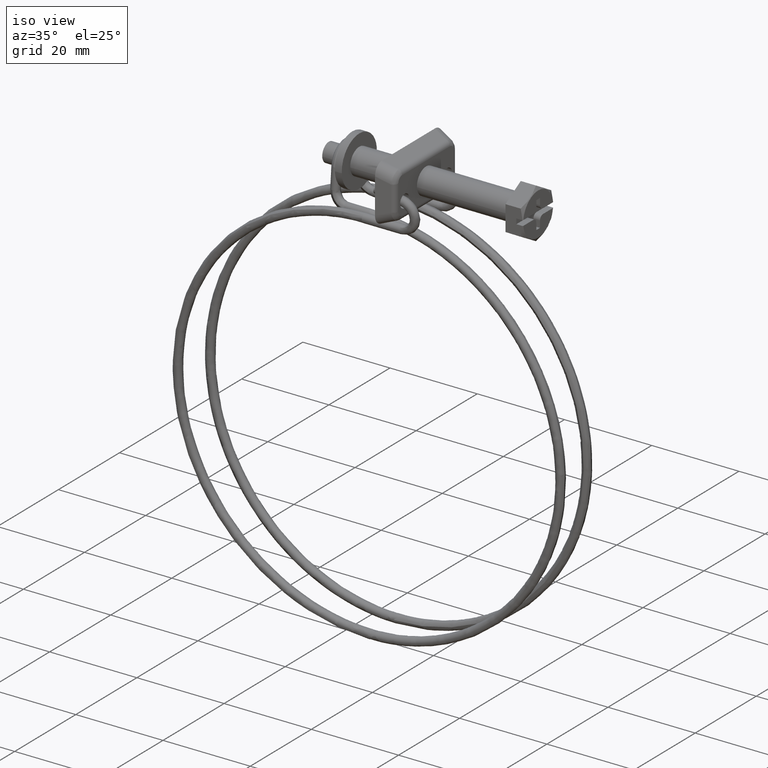
[diagram: clean part render]
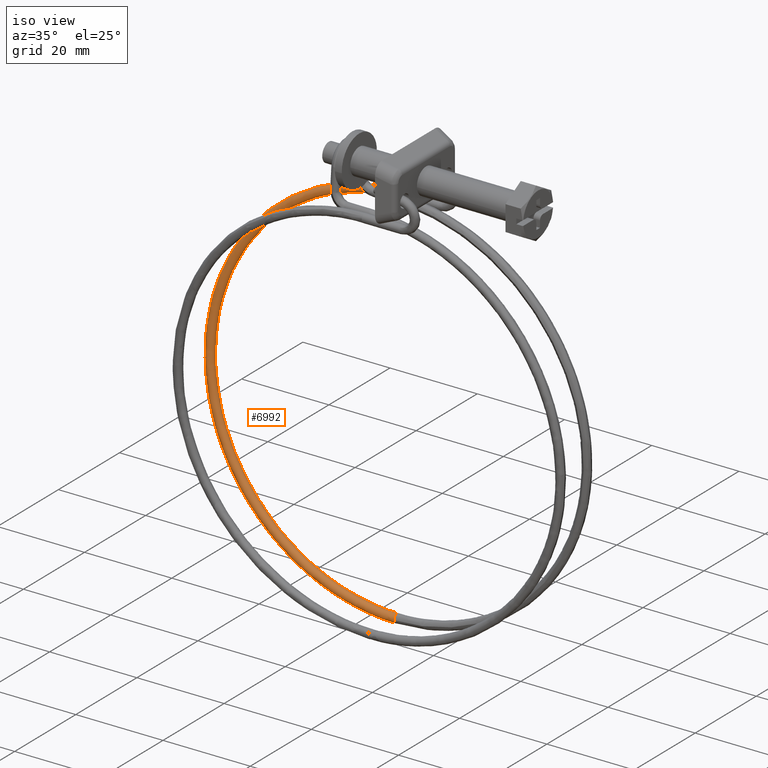
[diagram: same view with one face highlighted and labeled with its STEP entity id]
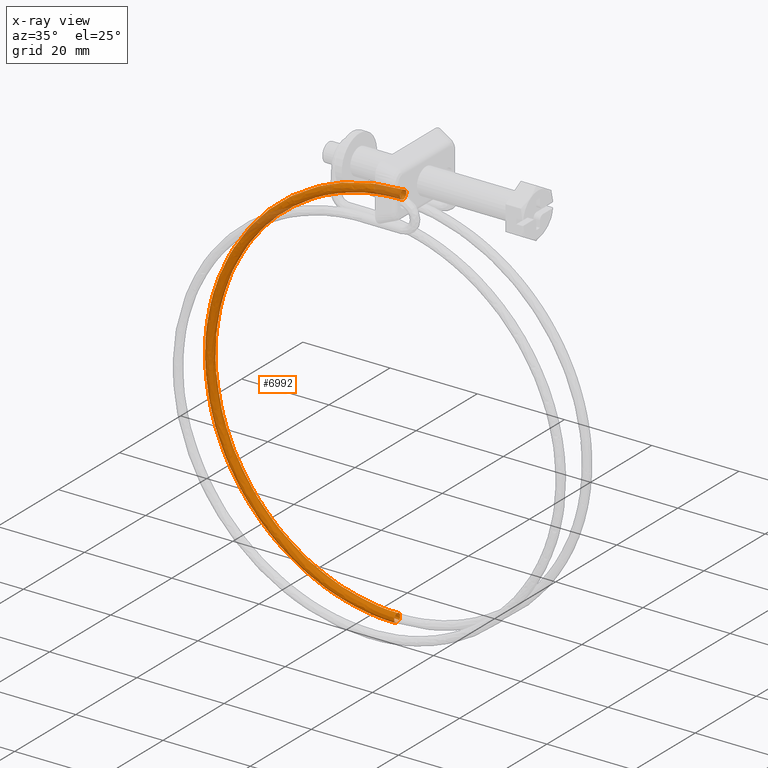
[diagram: x-ray of the same camera — body ghosted, the highlighted face saturated]
A machine part, iso view. The second image highlights one B-rep face of the part: STEP entity #6992.
The next image is the same camera in x-ray: the body ghosted, the highlighted face saturated — about 9% of this face is hidden behind the body in this view.
In plain terms, the highlighted face is a freeform B-spline surface patch.
Its self-contained STEP definition (entity closure, byte-faithful):
#4398=CARTESIAN_POINT('',(-31.349999999999749,6.002141516940950,-6.899077270550654));
#4399=VERTEX_POINT('',#4398);
#4400=CARTESIAN_POINT('',(-31.349999999999859,6.356184150809079,-6.851067969104745));
#4401=VERTEX_POINT('',#4400);
#4402=CARTESIAN_POINT('',(-31.349999999999749,6.002141516940950,-6.899077270550654));
#4403=CARTESIAN_POINT('',(-31.349999999999770,6.116085816228924,-6.862246773684251));
#4404=CARTESIAN_POINT('',(-31.349999999999799,6.236488123506049,-6.845384976278681));
#4405=CARTESIAN_POINT('',(-31.349999999999859,6.356184150809079,-6.851067969104745));
#4406=B_SPLINE_CURVE_WITH_KNOTS('',3,(#4402,#4403,#4404,#4405),.UNSPECIFIED.,.F.,.U.,(4,4),(0.942811831421887,1.0),.UNSPECIFIED.);
#4407=EDGE_CURVE('',#4399,#4401,#4406,.T.);
#4460=CARTESIAN_POINT('',(-31.349999999349759,5.310151656108771,-7.864888212279755));
#4461=VERTEX_POINT('',#4460);
#4467=CARTESIAN_POINT('',(-31.349999999999721,6.263819660097981,-8.848934030895604));
#4468=VERTEX_POINT('',#4467);
#4469=CARTESIAN_POINT('',(-31.349999999999721,6.263819660097981,-8.848934030895604));
#4470=CARTESIAN_POINT('',(-31.349999999909279,6.002294188613754,-8.836843640709359));
#4471=CARTESIAN_POINT('',(-31.349999999784369,5.747354253451134,-8.717169631460127));
#4472=CARTESIAN_POINT('',(-31.349999999545780,5.408316047699136,-8.345279260378682));
#4473=CARTESIAN_POINT('',(-31.349999999433312,5.314316095908798,-8.106126227399644));
#4474=CARTESIAN_POINT('',(-31.349999999349759,5.310151656108771,-7.864888212279755));
#4475=B_SPLINE_CURVE_WITH_KNOTS('',3,(#4469,#4470,#4471,#4472,#4473,#4474),.UNSPECIFIED.,.F.,.U.,(4,2,4),(0.500000000000000,0.625000000000000,0.740274349353487),.UNSPECIFIED.);
#4476=EDGE_CURVE('',#4468,#4461,#4475,.T.);
#4478=CARTESIAN_POINT('',(-31.349999999999859,7.069786342485944,-7.199859997275263));
#4479=VERTEX_POINT('',#4478);
#4480=CARTESIAN_POINT('',(-31.349999999999859,7.069786342485944,-7.199859997275263));
#4481=CARTESIAN_POINT('',(-31.349999999999721,7.232862618115296,-7.390962694234846));
#4482=CARTESIAN_POINT('',(-31.349999999999731,7.320541782176363,-7.645124389463263));
#4483=CARTESIAN_POINT('',(-31.349999999999721,7.296844452787684,-8.157703301296500));
#4484=CARTESIAN_POINT('',(-31.349999999999731,7.177170314575592,-8.412635756900890));
#4485=CARTESIAN_POINT('',(-31.349999999999721,6.790226578803581,-8.765382441016900));
#4486=CARTESIAN_POINT('',(-31.349999999999731,6.525339716038753,-8.861024514456879));
#4487=CARTESIAN_POINT('',(-31.349999999999721,6.263819660097981,-8.848934030895604));
#4488=B_SPLINE_CURVE_WITH_KNOTS('',3,(#4480,#4481,#4482,#4483,#4484,#4485,#4486,#4487),.UNSPECIFIED.,.F.,.U.,(4,2,2,4),(0.130000190143483,0.250000000000000,0.375000000000000,0.500000000000000),.UNSPECIFIED.);
#4489=EDGE_CURVE('',#4479,#4468,#4488,.T.);
#4517=CARTESIAN_POINT('',(-31.349999999349759,5.310151656108771,-7.864888212279755));
#4518=CARTESIAN_POINT('',(-31.349999999358701,5.309799209162009,-7.844528721063062));
#4519=CARTESIAN_POINT('',(-31.349999999367849,5.310086183933885,-7.824154239653593));
#4520=CARTESIAN_POINT('',(-31.349999999497349,5.323095395112666,-7.542194869797533));
#4521=CARTESIAN_POINT('',(-31.349999999648869,5.442743821456357,-7.287155129218784));
#4522=CARTESIAN_POINT('',(-31.349999999865009,5.741136468097140,-7.014947163849530));
#4523=CARTESIAN_POINT('',(-31.349999999937161,5.867099143843566,-6.942973733961462));
#4524=CARTESIAN_POINT('',(-31.349999999999749,6.002141516940950,-6.899077270550654));
#4525=B_SPLINE_CURVE_WITH_KNOTS('',3,(#4517,#4518,#4519,#4520,#4521,#4522,#4523,#4524),.UNSPECIFIED.,.F.,.U.,(4,2,2,4),(0.740274349353487,0.750000000000000,0.875000000000000,0.942811831421887),.UNSPECIFIED.);
#4526=EDGE_CURVE('',#4461,#4399,#4525,.T.);
#6085=CARTESIAN_POINT('',(-31.350000000000001,4.300002000001119,-93.850001000000006));
#6086=VERTEX_POINT('',#6085);
#6087=CARTESIAN_POINT('',(-31.349999999994260,3.300325002941401,-94.875130895281302));
#6088=VERTEX_POINT('',#6087);
#6089=CARTESIAN_POINT('',(-31.350000000000001,4.300002000001119,-93.850001000000006));
#6090=CARTESIAN_POINT('',(-31.349999999999270,4.038201694073048,-93.850001024100706));
#6091=CARTESIAN_POINT('',(-31.349999999998229,3.778013123048063,-93.957774154617212));
#6092=CARTESIAN_POINT('',(-31.349999999996129,3.407770248271958,-94.328014468498822));
#6093=CARTESIAN_POINT('',(-31.349999999995081,3.299995838207714,-94.588201773946707));
#6094=CARTESIAN_POINT('',(-31.349999999994310,3.299994866562023,-94.858380210193246));
#6095=CARTESIAN_POINT('',(-31.349999999994289,3.300105234481097,-94.866757582539620));
#6096=CARTESIAN_POINT('',(-31.349999999994260,3.300325002941401,-94.875130895281302));
#6097=B_SPLINE_CURVE_WITH_KNOTS('',3,(#6089,#6090,#6091,#6092,#6093,#6094,#6095,#6096),.UNSPECIFIED.,.F.,.U.,(4,2,2,4),(0.500000000000000,0.625000000000000,0.750000000000000,0.754000688758449),.UNSPECIFIED.);
#6098=EDGE_CURVE('',#6086,#6088,#6097,.T.);
#6119=CARTESIAN_POINT('',(-31.349999986310571,4.312567047722788,-95.849843094641699));
#6120=VERTEX_POINT('',#6119);
#6136=CARTESIAN_POINT('',(-31.350000000000001,5.028950799209254,-95.534536873649955));
#6137=VERTEX_POINT('',#6136);
#6147=CARTESIAN_POINT('',(-31.350000000000001,5.028950799209254,-95.534536873649955));
#6148=CARTESIAN_POINT('',(-31.350000000000001,5.200678629130110,-95.351169305936637));
#6149=CARTESIAN_POINT('',(-31.350000000000001,5.300002000001119,-95.101328014051759));
#6150=CARTESIAN_POINT('',(-31.350000000000001,5.300002000001119,-94.588201612200905));
#6151=CARTESIAN_POINT('',(-31.350000000000001,5.192228903610930,-94.328014341236695));
#6152=CARTESIAN_POINT('',(-31.350000000000001,4.821988658764400,-93.957774096390196));
#6153=CARTESIAN_POINT('',(-31.350000000000001,4.561801387800270,-93.850001000000006));
#6154=CARTESIAN_POINT('',(-31.350000000000001,4.300002000001119,-93.850001000000006));
#6155=B_SPLINE_CURVE_WITH_KNOTS('',3,(#6147,#6148,#6149,#6150,#6151,#6152,#6153,#6154),.UNSPECIFIED.,.F.,.U.,(4,2,2,4),(0.130000190143430,0.250000000000000,0.375000000000000,0.500000000000000),.UNSPECIFIED.);
#6156=EDGE_CURVE('',#6137,#6086,#6155,.T.);
#6194=CARTESIAN_POINT('',(-31.349999999994260,3.300325002941401,-94.875130895281302));
#6195=CARTESIAN_POINT('',(-31.349999998214908,3.308607524453388,-95.128357976368804));
#6196=CARTESIAN_POINT('',(-31.349999995758871,3.417584144309474,-95.377863777992928));
#6197=CARTESIAN_POINT('',(-31.349999990710209,3.786538112296210,-95.742120829314501));
#6198=CARTESIAN_POINT('',(-31.349999988147360,4.049080067952477,-95.849864315874413));
#6199=CARTESIAN_POINT('',(-31.349999986310571,4.312567047722788,-95.849843094641699));
#6200=B_SPLINE_CURVE_WITH_KNOTS('',3,(#6194,#6195,#6196,#6197,#6198,#6199),.UNSPECIFIED.,.F.,.U.,(4,2,4),(0.754000688758450,0.875000000000000,1.0),.UNSPECIFIED.);
#6201=EDGE_CURVE('',#6088,#6120,#6200,.T.);
#6740=CARTESIAN_POINT('',(-30.655752340007631,7.051986037553362,-7.179025273486190));
#6741=CARTESIAN_POINT('',(-30.658723610751760,7.226340819614112,-7.372171172563601));
#6742=CARTESIAN_POINT('',(-30.666985052917390,7.416068799228836,-7.902385103066149));
#6743=CARTESIAN_POINT('',(-30.679164533365551,7.056868904497126,-8.669295189947251));
#6744=CARTESIAN_POINT('',(-30.683970982211861,6.258805102084605,-8.956781679256206));
#6745=CARTESIAN_POINT('',(-30.678595854764520,5.490650567427047,-8.596914457421063));
#6746=CARTESIAN_POINT('',(-30.666160992648649,5.203120209390612,-7.798807945391251));
#6747=CARTESIAN_POINT('',(-30.653757563945650,5.569534851001606,-7.017810513945944));
#6748=CARTESIAN_POINT('',(-30.650596189671269,6.122087830201846,-6.829358836395180));
#6749=CARTESIAN_POINT('',(-30.650866743444240,6.396076643802041,-6.852909335350131));
#6750=CARTESIAN_POINT('',(-30.887168226671751,7.051994208311326,-7.179026613903407));
#6751=CARTESIAN_POINT('',(-30.889149073834510,7.226348973156069,-7.372172504399450));
#6752=CARTESIAN_POINT('',(-30.894656701944921,7.416076904557021,-7.902386411095301));
#6753=CARTESIAN_POINT('',(-30.902776355577039,7.056876937351004,-8.669296463097242));
#6754=CARTESIAN_POINT('',(-30.905980654807909,6.258813105914980,-8.956782938712831));
#6755=CARTESIAN_POINT('',(-30.902397236509682,5.490658603698150,-8.596915732195745));
#6756=CARTESIAN_POINT('',(-30.894107328432430,5.203128319580514,-7.798809255784247));
#6757=CARTESIAN_POINT('',(-30.885838375963768,5.569543033439113,-7.017811860107236));
#6758=CARTESIAN_POINT('',(-30.883730793114179,6.122096030743633,-6.829360191719593));
#6759=CARTESIAN_POINT('',(-30.883911162296162,6.396084842801924,-6.852910689888518));
#6760=CARTESIAN_POINT('',(-31.118584113335881,7.052002379069291,-7.179027954320623));
#6761=CARTESIAN_POINT('',(-31.119574536917259,7.226357126698028,-7.372173836235296));
#6762=CARTESIAN_POINT('',(-31.122328350972460,7.416085009885206,-7.902387719124455));
#6763=CARTESIAN_POINT('',(-31.126388177788531,7.056884970204880,-8.669297736247229));
#6764=CARTESIAN_POINT('',(-31.127990327403960,6.258821109745354,-8.956784198169457));
#6765=CARTESIAN_POINT('',(-31.126198618254850,5.490666639969255,-8.596917006970431));
#6766=CARTESIAN_POINT('',(-31.122053664216221,5.203136429770420,-7.798810566177236));
#6767=CARTESIAN_POINT('',(-31.117919187981880,5.569551215876610,-7.017813206268539));
#6768=CARTESIAN_POINT('',(-31.116865396557099,6.122104231285422,-6.829361547044002));
#6769=CARTESIAN_POINT('',(-31.116955581148080,6.396093041801805,-6.852912044426906));
#6770=CARTESIAN_POINT('',(-37.135397295345747,7.052214818780910,-7.179062805168990));
#6771=CARTESIAN_POINT('',(-37.110636705260333,7.226569118793485,-7.372208463968111));
#6772=CARTESIAN_POINT('',(-37.041791352348021,7.416295748422449,-7.902421727883152));
#6773=CARTESIAN_POINT('',(-36.940295679688141,7.057093824410233,-8.669330838147655));
#6774=CARTESIAN_POINT('',(-36.900241938410943,6.259029209339560,-8.956816944042354));
#6775=CARTESIAN_POINT('',(-36.945034668135527,5.490875583022421,-8.596950151112941));
#6776=CARTESIAN_POINT('',(-37.048658521407070,5.203347294712459,-7.798844636395756));
#6777=CARTESIAN_POINT('',(-37.152020429565589,5.569763959256163,-7.017848206463096));
#6778=CARTESIAN_POINT('',(-37.178365215771663,6.122317445376468,-6.829396785479411));
#6779=CARTESIAN_POINT('',(-37.176110600946679,6.396306215803303,-6.852947262425724));
#6780=CARTESIAN_POINT('',(-42.916529355040652,7.025437231808791,-8.329220791983408));
#6781=CARTESIAN_POINT('',(-42.867026705011973,7.199905697658791,-8.517443788025506));
#6782=CARTESIAN_POINT('',(-42.729387521345338,7.389949767280090,-9.033969878670064));
#6783=CARTESIAN_POINT('',(-42.526472132642553,7.031215865945574,-9.780700586536325));
#6784=CARTESIAN_POINT('',(-42.446394625167137,6.233335959552366,-10.060223587450141));
#6785=CARTESIAN_POINT('',(-42.535946563059717,5.464975771030066,-9.709262060110401));
#6786=CARTESIAN_POINT('',(-42.743116720119957,5.176969648339663,-8.931758052166451));
#6787=CARTESIAN_POINT('',(-42.949763183277803,5.542909723500005,-8.171311045614662));
#6788=CARTESIAN_POINT('',(-43.002433039894058,6.095341744718135,-7.988097241229467));
#6789=CARTESIAN_POINT('',(-42.997925497489391,6.369340910050010,-8.011199477440020));
#6790=CARTESIAN_POINT('',(-53.604121068485533,6.923160792125819,-12.756111516163990));
#6791=CARTESIAN_POINT('',(-53.508882587205477,7.098066932905486,-12.925390373409700));
#6792=CARTESIAN_POINT('',(-53.244077635987622,7.289327931709051,-13.389243409185470));
#6793=CARTESIAN_POINT('',(-52.853687355091637,6.932388095487384,-14.058320551255839));
#6794=CARTESIAN_POINT('',(-52.699625699990982,6.135216189919729,-14.307198740037229));
#6795=CARTESIAN_POINT('',(-52.871915275422850,5.366064232919196,-13.990507788827820));
#6796=CARTESIAN_POINT('',(-53.270491333981631,5.076226426806952,-13.292285601388100));
#6797=CARTESIAN_POINT('',(-53.668059853991473,5.440339448759249,-12.610920003163690));
#6798=CARTESIAN_POINT('',(-53.769391745407113,5.992305792371441,-12.447862393917140));
#6799=CARTESIAN_POINT('',(-53.760719654322202,6.266344810897325,-12.469239641455779));
#6800=CARTESIAN_POINT('',(-63.409314473919522,6.771775807811213,-19.308595986896670));
#6801=CARTESIAN_POINT('',(-63.272122031276702,6.947329728545857,-19.449836606877149));
#6802=CARTESIAN_POINT('',(-62.890666577711812,7.140391841118290,-19.835730986114282));
#6803=CARTESIAN_POINT('',(-62.328303596910381,6.786107307630358,-20.389877113233990));
#6804=CARTESIAN_POINT('',(-62.106375501317679,5.989983277365514,-20.593399504745410));
#6805=CARTESIAN_POINT('',(-62.354561186139193,5.219659464912646,-20.327430655943900));
#6806=CARTESIAN_POINT('',(-62.928715900751030,4.927110679180958,-19.746549378849519));
#6807=CARTESIAN_POINT('',(-63.501419241404278,5.288519574448666,-19.182228071419289));
#6808=CARTESIAN_POINT('',(-63.647389331529908,5.839796692786603,-19.049002601181620));
#6809=CARTESIAN_POINT('',(-63.634897055851170,6.113894695937784,-19.067826782546529));
#6810=CARTESIAN_POINT('',(-69.961380782742523,6.545242524644246,-29.113768057315859));
#6811=CARTESIAN_POINT('',(-69.796163405634061,6.721765450869954,-29.213066648077120));
#6812=CARTESIAN_POINT('',(-69.336786283108410,6.917521825769409,-29.482343701472079));
#6813=CARTESIAN_POINT('',(-68.659546816502967,6.567209324605888,-29.864566039425789));
#6814=CARTESIAN_POINT('',(-68.392284442831041,5.772652797180938,-30.000241292407480));
#6815=CARTESIAN_POINT('',(-68.691168164796181,5.000576021616385,-29.810146967305041));
#6816=CARTESIAN_POINT('',(-69.382608117285272,4.703971917227388,-29.404794410067190));
#6817=CARTESIAN_POINT('',(-70.072300216807790,5.061335745059608,-29.015558112985129));
#6818=CARTESIAN_POINT('',(-70.248088292101670,5.611581860404105,-28.926958146026731));
#6819=CARTESIAN_POINT('',(-70.233044161542779,5.885768097889085,-28.941963229311710));
#6820=CARTESIAN_POINT('',(-74.387899011342071,6.298330303292908,-39.801013582350329));
#6821=CARTESIAN_POINT('',(-74.203749600906491,6.475909261163153,-39.854603340313069));
#6822=CARTESIAN_POINT('',(-73.691733082098239,6.674601869434325,-39.996789693887813));
#6823=CARTESIAN_POINT('',(-72.936889671107508,6.328618127859643,-40.191647808592649));
#6824=CARTESIAN_POINT('',(-72.639002067602618,5.535769880327423,-40.253382587671382));
#6825=CARTESIAN_POINT('',(-72.972134466538833,4.761782708449073,-40.145977059078163));
#6826=CARTESIAN_POINT('',(-73.742805577610483,4.460759078217646,-39.931917413738937));
#6827=CARTESIAN_POINT('',(-74.511528551729583,4.813714552078867,-39.733490469920923));
#6828=CARTESIAN_POINT('',(-74.707459942134378,5.362837070299372,-39.693523811760208));
#6829=CARTESIAN_POINT('',(-74.690691925211084,5.637119466423352,-39.704366804727520));
#6830=CARTESIAN_POINT('',(-75.537931089681877,6.164752061122398,-45.582758458908977));
#6831=CARTESIAN_POINT('',(-75.348863864207658,6.342902264366448,-45.611622670444739));
#6832=CARTESIAN_POINT('',(-74.823173652230707,6.543183186547942,-45.685061108023682));
#6833=CARTESIAN_POINT('',(-74.048171717401303,6.199541026230603,-45.778567196865502));
#6834=CARTESIAN_POINT('',(-73.742328855470291,5.407616848539157,-45.800304922737212));
#6835=CARTESIAN_POINT('',(-74.084357745159821,4.632596274804830,-45.737628728765920));
#6836=CARTESIAN_POINT('',(-74.875610067848555,4.329181964590616,-45.627046277772543));
#6837=CARTESIAN_POINT('',(-75.664862227429524,4.679752801741191,-45.531834953979832));
#6838=CARTESIAN_POINT('',(-75.866026077391240,5.228267525993018,-45.518175796254212));
#6839=CARTESIAN_POINT('',(-75.848810261022180,5.502601937773553,-45.526767365335829));
#6840=CARTESIAN_POINT('',(-75.537931089602893,5.897490524305701,-57.150795260281583));
#6841=CARTESIAN_POINT('',(-75.348863864128631,6.076783660888180,-57.130189222364152));
#6842=CARTESIAN_POINT('',(-74.823173652151624,6.280242441446236,-57.066078564017069));
#6843=CARTESIAN_POINT('',(-74.048171717322305,5.941285257841853,-56.956802076721189));
#6844=CARTESIAN_POINT('',(-73.742328855391136,5.151209935769202,-56.898514707654293));
#6845=CARTESIAN_POINT('',(-74.084357745080879,4.374121757673096,-56.925331837771367));
#6846=CARTESIAN_POINT('',(-74.875610067769415,4.065924235275801,-57.021783946587497));
#6847=CARTESIAN_POINT('',(-75.664862227350483,4.411723951454152,-57.133083831254908));
#6848=CARTESIAN_POINT('',(-75.866026077312142,4.959022616872353,-57.172060056657848));
#6849=CARTESIAN_POINT('',(-75.848810260943068,5.233461100258684,-57.176147033629121));
#6850=CARTESIAN_POINT('',(-74.387899011282371,5.763912282136439,-62.932540136840807));
#6851=CARTESIAN_POINT('',(-74.203749600831912,5.943776664094679,-62.887208552515197));
#6852=CARTESIAN_POINT('',(-73.691733082076610,6.148823758558971,-62.754349978093572));
#6853=CARTESIAN_POINT('',(-72.936889671060882,5.812208156210488,-62.543721465055583));
#6854=CARTESIAN_POINT('',(-72.639002067562515,5.023056903978579,-62.445437042670420));
#6855=CARTESIAN_POINT('',(-72.972134466511349,4.244935324025394,-62.516983507538193));
#6856=CARTESIAN_POINT('',(-73.742805577512243,3.934347121644286,-62.716912810566853));
#6857=CARTESIAN_POINT('',(-74.511528551675156,4.277762201116679,-62.931428315450802));
#6858=CARTESIAN_POINT('',(-74.707459942098339,4.824453072563765,-62.996712041118499));
#6859=CARTESIAN_POINT('',(-74.690691925171677,5.098943571606405,-62.998547594229109));
#6860=CARTESIAN_POINT('',(-69.961380782809798,5.517000060779440,-73.619785661876804));
#6861=CARTESIAN_POINT('',(-69.796163405709919,5.697920474379202,-73.528745244728157));
#6862=CARTESIAN_POINT('',(-69.336786283138821,5.905903802223432,-73.268795970593402));
#6863=CARTESIAN_POINT('',(-68.659546816555959,5.573616959467333,-72.870803234127067));
#6864=CARTESIAN_POINT('',(-68.392284442878150,4.786173987125228,-72.698578338054105));
#6865=CARTESIAN_POINT('',(-68.691168164833044,4.006142010865090,-72.852813599169451));
#6866=CARTESIAN_POINT('',(-69.382608117385942,3.691134282640408,-73.244035814350894));
#6867=CARTESIAN_POINT('',(-70.072300216841697,4.030141008133705,-73.649360672130456));
#6868=CARTESIAN_POINT('',(-70.248088292145312,4.575708282460973,-73.763277706929429));
#6869=CARTESIAN_POINT('',(-70.233044161596013,4.850294940141462,-73.760951169680069));
#6870=CARTESIAN_POINT('',(-63.409314473870140,5.290466777615650,-83.424957732373514));
#6871=CARTESIAN_POINT('',(-63.272122031224526,5.472356196708150,-83.291975286018527));
#6872=CARTESIAN_POINT('',(-62.890666577674288,5.683033786872226,-82.915408685944584));
#6873=CARTESIAN_POINT('',(-62.328303596858667,5.354718976439969,-82.345492160459600));
#6874=CARTESIAN_POINT('',(-62.106375501268907,4.568843506944465,-82.105420125679316));
#6875=CARTESIAN_POINT('',(-62.354561186091722,3.787058567561401,-82.335529910684471));
#6876=CARTESIAN_POINT('',(-62.928715900701377,3.467995520682742,-82.902280845542847));
#6877=CARTESIAN_POINT('',(-63.501419241319191,3.802957178747106,-83.482690713940841));
#6878=CARTESIAN_POINT('',(-63.647389331490523,4.347493450079271,-83.641233251785010));
#6879=CARTESIAN_POINT('',(-63.634897055811848,4.622168342093027,-83.635087616493578));
#6880=CARTESIAN_POINT('',(-53.604121068517408,5.139081793309146,-89.977442202866087));
#6881=CARTESIAN_POINT('',(-53.508882587234680,5.321618992355843,-89.816421519230090));
#6882=CARTESIAN_POINT('',(-53.244077636032863,5.534097696293788,-89.361896262794943));
#6883=CARTESIAN_POINT('',(-52.853687355142533,5.208438188588566,-88.677048722151781));
#6884=CARTESIAN_POINT('',(-52.699625700042219,4.423610594387585,-88.391620890218576));
#6885=CARTESIAN_POINT('',(-52.871915275481200,3.640653799562951,-88.672452777590706));
#6886=CARTESIAN_POINT('',(-53.270491333981141,3.318879773063452,-89.356544622850066));
#6887=CARTESIAN_POINT('',(-53.668059854128181,3.651137304437238,-90.053998781940564));
#6888=CARTESIAN_POINT('',(-53.769391745442832,4.194984350493157,-90.242373458842437));
#6889=CARTESIAN_POINT('',(-53.760719654348392,4.469718227139424,-90.233674757332921));
#6890=CARTESIAN_POINT('',(-42.916529355001920,5.036805353615568,-94.404332927365516));
#6891=CARTESIAN_POINT('',(-42.867026704982173,5.219780227591381,-94.224368104937270));
#6892=CARTESIAN_POINT('',(-42.729387521292082,5.433475860707660,-93.717169793466553));
#6893=CARTESIAN_POINT('',(-42.526472132586150,5.109610418124959,-92.954668687202187));
#6894=CARTESIAN_POINT('',(-42.446394625109519,4.325490824761591,-92.638596043057319));
#6895=CARTESIAN_POINT('',(-42.535946562992848,3.541742261443533,-92.953698506529776));
#6896=CARTESIAN_POINT('',(-42.743116720118749,3.218136551525836,-93.717072172312484));
#6897=CARTESIAN_POINT('',(-42.949763183162247,3.548567029695999,-94.493607739733378));
#6898=CARTESIAN_POINT('',(-43.002433039851518,4.091948398150477,-94.702138611824751));
#6899=CARTESIAN_POINT('',(-42.997925497450140,4.366722127981836,-94.691714921683243));
#6900=CARTESIAN_POINT('',(-37.135397329285681,5.010232735346102,-95.554524436795120));
#6901=CARTESIAN_POINT('',(-37.110636739005933,5.193321341435478,-95.369636740240836));
#6902=CARTESIAN_POINT('',(-37.041791385586258,5.407333200015988,-94.848750664107314));
#6903=CARTESIAN_POINT('',(-36.940295712149052,5.083933954841939,-94.066070277833617));
#6904=CARTESIAN_POINT('',(-36.900241970556081,4.299998339395318,-93.742034172735899));
#6905=CARTESIAN_POINT('',(-36.945034700615082,3.516044031008865,-94.066042271159773));
#6906=CARTESIAN_POINT('',(-37.048658554623003,3.191962348499905,-94.850018328550561));
#6907=CARTESIAN_POINT('',(-37.152020463666773,3.521918057133305,-95.647104219256860));
#6908=CARTESIAN_POINT('',(-37.178365250030133,4.065178416678982,-95.860872946479304));
#6909=CARTESIAN_POINT('',(-37.176110635189673,4.339962502516923,-95.850001000716134));
#6910=CARTESIAN_POINT('',(-31.118584107436739,5.010231933309293,-95.554524423959393));
#6911=CARTESIAN_POINT('',(-31.119574531045330,5.193320542856070,-95.369636724117967));
#6912=CARTESIAN_POINT('',(-31.122328345174878,5.407332410989666,-94.848750644118780));
#6913=CARTESIAN_POINT('',(-31.126388172101709,5.083933179758819,-94.066070263644008));
#6914=CARTESIAN_POINT('',(-31.127990321761200,4.299997569684402,-93.742034172766964));
#6915=CARTESIAN_POINT('',(-31.126198612563559,3.516043254944976,-94.066042285337758));
#6916=CARTESIAN_POINT('',(-31.122053658414131,3.191961558060606,-94.850018348559843));
#6917=CARTESIAN_POINT('',(-31.117919182063250,3.521917252489400,-95.647104233347150));
#6918=CARTESIAN_POINT('',(-31.116865390611480,4.065177608510790,-95.860872950706522));
#6919=CARTESIAN_POINT('',(-31.116955575204859,4.339961694717355,-95.850000999971357));
#6920=CARTESIAN_POINT('',(-30.887168214873480,5.010231902461724,-95.554524423465708));
#6921=CARTESIAN_POINT('',(-30.889149062090659,5.193320512141479,-95.369636723497834));
#6922=CARTESIAN_POINT('',(-30.894656690349748,5.407332380642501,-94.848750643350030));
#6923=CARTESIAN_POINT('',(-30.902776344203399,5.083933149947931,-94.066070263098212));
#6924=CARTESIAN_POINT('',(-30.905980643522408,4.299997540080136,-93.742034172768172));
#6925=CARTESIAN_POINT('',(-30.902397225127110,3.516043225096365,-94.066042285883071));
#6926=CARTESIAN_POINT('',(-30.894107316828261,3.191961527659095,-94.850018349329375));
#6927=CARTESIAN_POINT('',(-30.885838364126499,3.521917221541557,-95.647104233889138));
#6928=CARTESIAN_POINT('',(-30.883730781222958,4.065177577427399,-95.860872950869080));
#6929=CARTESIAN_POINT('',(-30.883911150409720,4.339961663648140,-95.850000999942722));
#6930=CARTESIAN_POINT('',(-30.655752322310221,5.010231871614154,-95.554524422972037));
#6931=CARTESIAN_POINT('',(-30.658723593135981,5.193320481426884,-95.369636722877715));
#6932=CARTESIAN_POINT('',(-30.666985035524618,5.407332350295335,-94.848750642581265));
#6933=CARTESIAN_POINT('',(-30.679164516305100,5.083933120137042,-94.066070262552486));
#6934=CARTESIAN_POINT('',(-30.683970965283610,4.299997510475870,-93.742034172769351));
#6935=CARTESIAN_POINT('',(-30.678595837690668,3.516043195247754,-94.066042286428356));
#6936=CARTESIAN_POINT('',(-30.666160975242391,3.191961497257583,-94.850018350098964));
#6937=CARTESIAN_POINT('',(-30.653757546189748,3.521917190593716,-95.647104234431097));
#6938=CARTESIAN_POINT('',(-30.650596171834430,4.065177546344006,-95.860872951031681));
#6939=CARTESIAN_POINT('',(-30.650866725614581,4.339961632578926,-95.850000999914073));
#6940=B_SPLINE_SURFACE_WITH_KNOTS('',3,3,((#6740,#6750,#6760,#6770,#6780,#6790,#6800,#6810,#6820,#6830,#6840,#6850,#6860,#6870,#6880,#6890,#6900,#6910,#6920,#6930),(#6741,#6751,#6761,#6771,#6781,#6791,#6801,#6811,#6821,#6831,#6841,#6851,#6861,#6871,#6881,#6891,#6901,#6911,#6921,#6931),(#6742,#6752,#6762,#6772,#6782,#6792,#6802,#6812,#6822,#6832,#6842,#6852,#6862,#6872,#6882,#6892,#6902,#6912,#6922,#6932),(#6743,#6753,#6763,#6773,#6783,#6793,#6803,#6813,#6823,#6833,#6843,#6853,#6863,#6873,#6883,#6893,#6903,#6913,#6923,#6933),(#6744,#6754,#6764,#6774,#6784,#6794,#6804,#6814,#6824,#6834,#6844,#6854,#6864,#6874,#6884,#6894,#6904,#6914,#6924,#6934),(#6745,#6755,#6765,#6775,#6785,#6795,#6805,#6815,#6825,#6835,#6845,#6855,#6865,#6875,#6885,#6895,#6905,#6915,#6925,#6935),(#6746,#6756,#6766,#6776,#6786,#6796,#6806,#6816,#6826,#6836,#6846,#6856,#6866,#6876,#6886,#6896,#6906,#6916,#6926,#6936),(#6747,#6757,#6767,#6777,#6787,#6797,#6807,#6817,#6827,#6837,#6847,#6857,#6867,#6877,#6887,#6897,#6907,#6917,#6927,#6937),(#6748,#6758,#6768,#6778,#6788,#6798,#6808,#6818,#6828,#6838,#6848,#6858,#6868,#6878,#6888,#6898,#6908,#6918,#6928,#6938),(#6749,#6759,#6769,#6779,#6789,#6799,#6809,#6819,#6829,#6839,#6849,#6859,#6869,#6879,#6889,#6899,#6909,#6919,#6929,#6939)),.UNSPECIFIED.,.F.,.F.,.U.,(4,1,1,1,1,1,1,4),(4,2,2,1,2,2,2,1,2,2,4),(0.0,0.781846561934407,1.567717323119880,2.353588084305353,3.139458845490826,3.925329606676298,4.711200367861771,5.537054899806180),(0.0,0.699137480251226,18.177574875480222,35.656012270709141,53.134449665938092,70.612887061167058,88.091324456396009,105.569761851625000,123.048199246854100,140.526636642082910,141.225774136054700),.UNSPECIFIED.);
#6941=ORIENTED_EDGE('',*,*,#6156,.F.);
#6942=CARTESIAN_POINT('',(-31.349999999999859,7.069786342485944,-7.199859997275263));
#6943=CARTESIAN_POINT('',(-37.132723882095583,7.069990564936220,-7.199893484547347));
#6944=CARTESIAN_POINT('',(-42.911184529249141,7.043225305074604,-8.349519945839433));
#6945=CARTESIAN_POINT('',(-53.594159397047562,6.940988691458584,-12.774686855066630));
#6946=CARTESIAN_POINT('',(-58.493527380174157,6.865353467308094,-16.048450326257441));
#6947=CARTESIAN_POINT('',(-66.669664508552984,6.676451892045257,-24.224787259250881));
#6948=CARTESIAN_POINT('',(-69.943220905360988,6.563259860666028,-29.124143897853550));
#6949=CARTESIAN_POINT('',(-74.368016307734024,6.316454232577522,-39.806775684489182));
#6950=CARTESIAN_POINT('',(-75.517517407132800,6.182937670745310,-45.585850815021978));
#6951=CARTESIAN_POINT('',(-75.517517407053830,5.915799542393870,-57.148546055902891));
#6952=CARTESIAN_POINT('',(-74.368016307672775,5.782282980563025,-62.927621186437868));
#6953=CARTESIAN_POINT('',(-69.943220905422478,5.535477352471770,-73.610252973069294));
#6954=CARTESIAN_POINT('',(-66.669664508575934,5.422285321084841,-78.509609611721544));
#6955=CARTESIAN_POINT('',(-58.493527380151683,5.233383745840157,-86.685946544620222));
#6956=CARTESIAN_POINT('',(-53.594159397085370,5.157748521684433,-89.959710015700637));
#6957=CARTESIAN_POINT('',(-42.911184529212129,5.055511908060717,-94.384876925243489));
#6958=CARTESIAN_POINT('',(-37.132723916014179,5.028951570039754,-95.534536886315493));
#6959=CARTESIAN_POINT('',(-31.350000000000001,5.028950799209254,-95.534536873649955));
#6960=B_SPLINE_CURVE_WITH_KNOTS('',3,(#6942,#6943,#6944,#6945,#6946,#6947,#6948,#6949,#6950,#6951,#6952,#6953,#6954,#6955,#6956,#6957,#6958,#6959),.UNSPECIFIED.,.F.,.U.,(4,2,2,2,2,2,2,2,4),(0.080613799421535,0.138077822723823,0.195541846026110,0.253005869328398,0.310469892630685,0.367933915932972,0.425397939235260,0.482861962537548,0.540325985839835),.UNSPECIFIED.);
#6961=EDGE_CURVE('',#4479,#6137,#6960,.T.);
#6962=ORIENTED_EDGE('',*,*,#6961,.F.);
#6963=ORIENTED_EDGE('',*,*,#4489,.T.);
#6964=ORIENTED_EDGE('',*,*,#4476,.T.);
#6965=ORIENTED_EDGE('',*,*,#4526,.T.);
#6966=ORIENTED_EDGE('',*,*,#4407,.T.);
#6967=CARTESIAN_POINT('',(-31.349999999999859,6.356184150809079,-6.851067969104745));
#6968=CARTESIAN_POINT('',(-37.176231473628341,6.356389132007053,-6.851101833565417));
#6969=CARTESIAN_POINT('',(-42.998167152221832,6.329586797382878,-8.009376024252141));
#6970=CARTESIAN_POINT('',(-53.761508230059150,6.227210526817053,-12.467824894167141));
#6971=CARTESIAN_POINT('',(-58.697728367422151,6.151472027562026,-15.766208636614889));
#6972=CARTESIAN_POINT('',(-66.935356046614842,5.962312803204153,-24.004023174433382));
#6973=CARTESIAN_POINT('',(-70.233527037445029,5.848966507446848,-28.940212600621479));
#6974=CARTESIAN_POINT('',(-74.691590874233839,5.601824767070671,-39.703144352283907));
#6975=CARTESIAN_POINT('',(-75.849733216229296,5.468126485017499,-45.525655283960610));
#6976=CARTESIAN_POINT('',(-75.849733214358281,5.200624784958118,-57.175255779785481));
#6977=CARTESIAN_POINT('',(-74.691590870611336,5.066926502902463,-62.997766711452350));
#6978=CARTESIAN_POINT('',(-70.233527030590537,4.819784762531230,-73.760698463134545));
#6979=CARTESIAN_POINT('',(-66.935356038236407,4.706438466762373,-78.696887889397487));
#6980=CARTESIAN_POINT('',(-58.697728356441523,4.517279242422664,-86.934702427046801));
#6981=CARTESIAN_POINT('',(-53.761508218137422,4.441540743158524,-90.233086169421114));
#6982=CARTESIAN_POINT('',(-42.998167138849489,4.339164472592745,-94.691535039652251));
#6983=CARTESIAN_POINT('',(-37.176231494182197,4.312567824474694,-95.849843094661168));
#6984=CARTESIAN_POINT('',(-31.349999986310571,4.312567047722788,-95.849843094641699));
#6985=B_SPLINE_CURVE_WITH_KNOTS('',3,(#6967,#6968,#6969,#6970,#6971,#6972,#6973,#6974,#6975,#6976,#6977,#6978,#6979,#6980,#6981,#6982,#6983,#6984),.UNSPECIFIED.,.F.,.U.,(4,2,2,2,2,2,2,2,4),(0.080613799421535,0.138077822723823,0.195541846026110,0.253005869328398,0.310469892630685,0.367933915932972,0.425397939235260,0.482861962537548,0.540325985839835),.UNSPECIFIED.);
#6986=EDGE_CURVE('',#4401,#6120,#6985,.T.);
#6987=ORIENTED_EDGE('',*,*,#6986,.T.);
#6988=ORIENTED_EDGE('',*,*,#6201,.F.);
#6989=ORIENTED_EDGE('',*,*,#6098,.F.);
#6990=EDGE_LOOP('',(#6941,#6962,#6963,#6964,#6965,#6966,#6987,#6988,#6989));
#6991=FACE_OUTER_BOUND('',#6990,.T.);
#6992=ADVANCED_FACE('',(#6991),#6940,.T.);